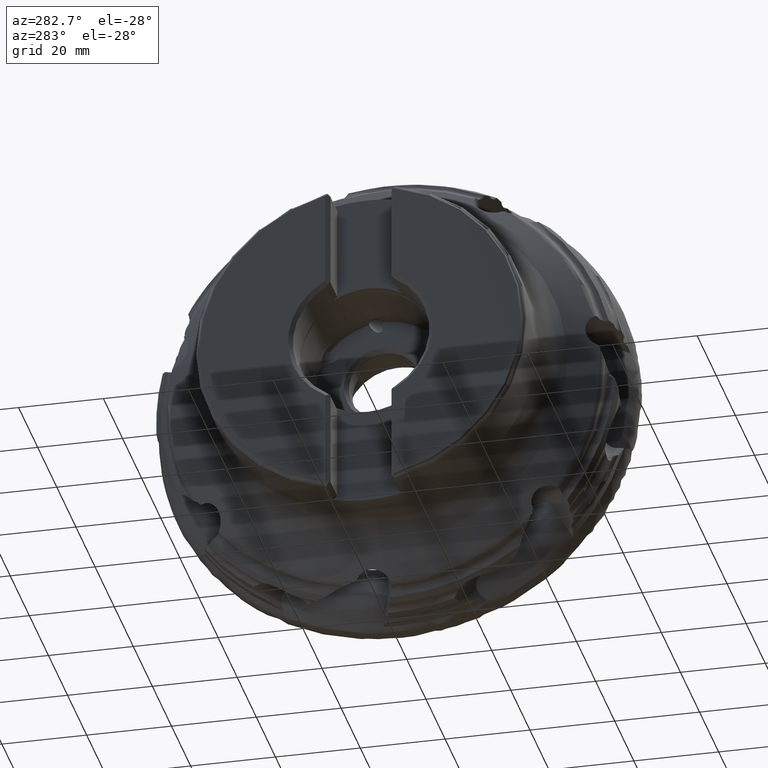
[diagram: clean part render]
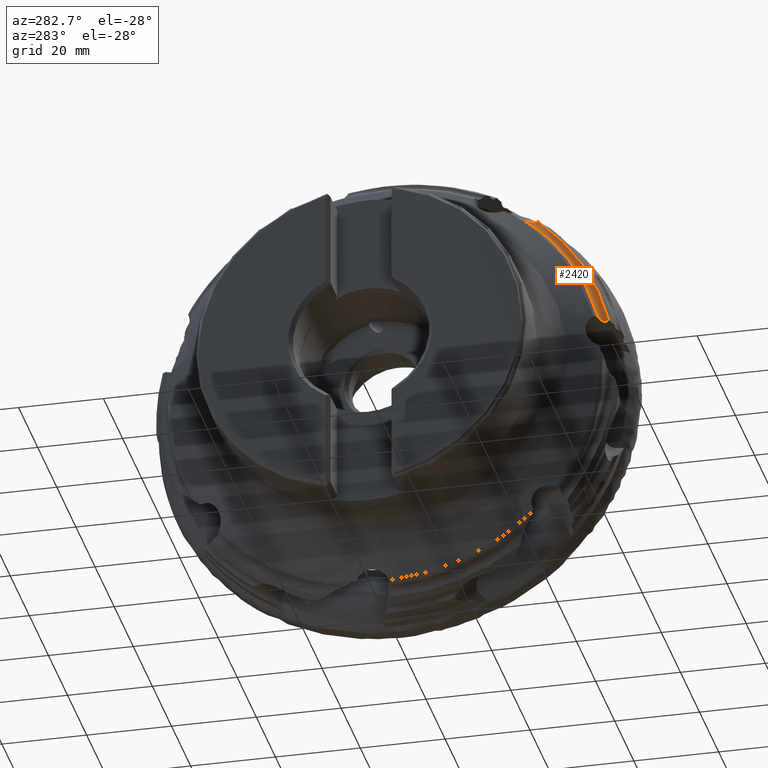
[diagram: same view with one face highlighted and labeled with its STEP entity id]
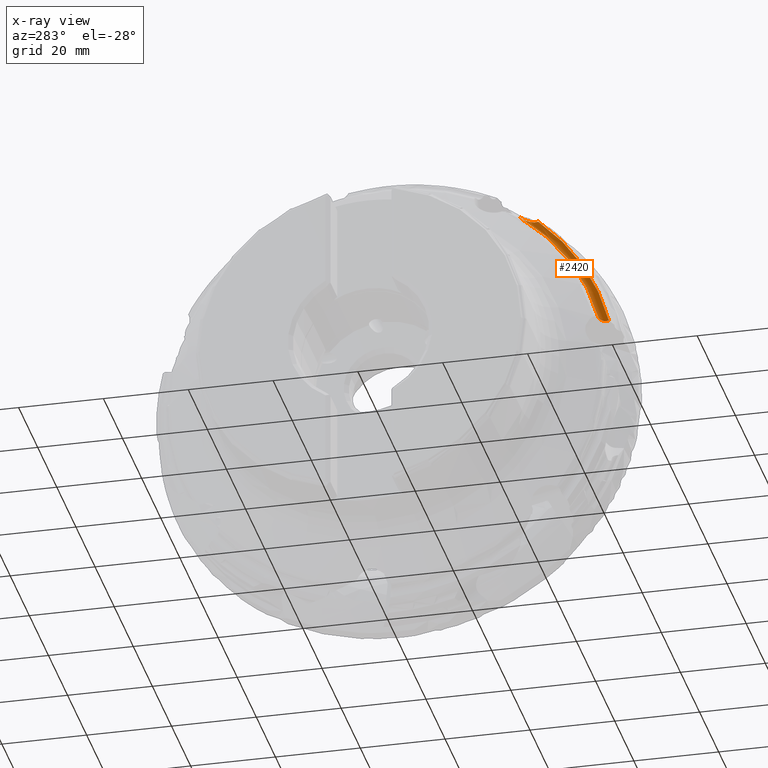
[diagram: x-ray of the same camera — body ghosted, the highlighted face saturated]
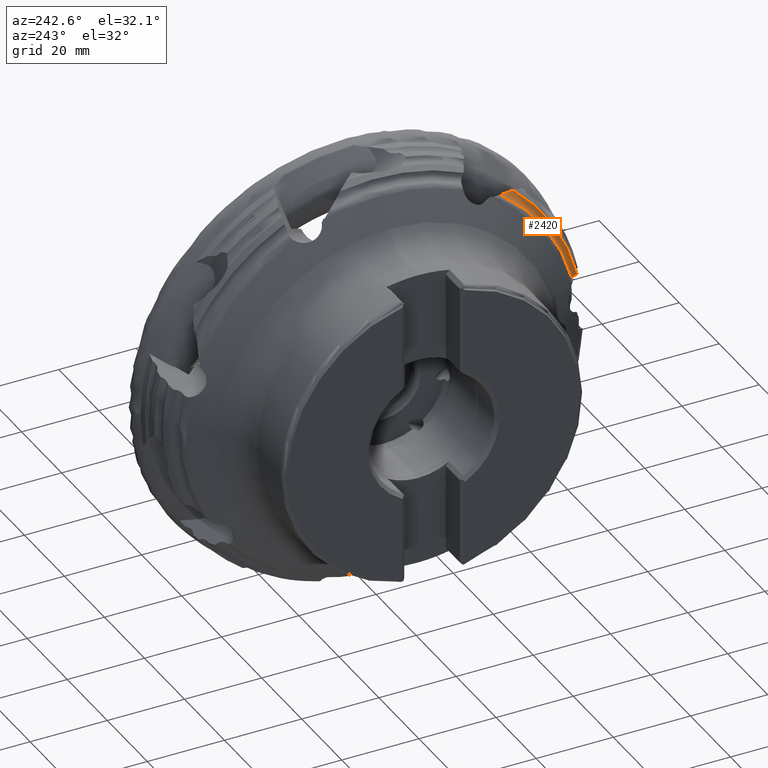
[diagram: same view with one face highlighted and labeled with its STEP entity id]
A machine part, auxiliary view. The second image highlights one B-rep face of the part: STEP entity #2420.
The next image is the same camera in x-ray: the body ghosted, the highlighted face saturated — about 0% of this face is hidden behind the body in this view.
A second angle (auxiliary view) of the same face is appended — the face is thin or edge-on in the first view.
In plain terms, the highlighted toroidal blend (fillet) surface has major radius 53.4155 mm and minor (blend) radius 1.8 mm.
Its self-contained STEP definition (entity closure, byte-faithful):
#364 = VERTEX_POINT ( 'NONE', #10924 ) ;
#1037 = TOROIDAL_SURFACE ( 'NONE', #3967, 53.41549932201380100, 1.800000000000002300 ) ;
#1041 = FACE_OUTER_BOUND ( 'NONE', #2248, .T. ) ;
#1181 = ORIENTED_EDGE ( 'NONE', *, *, #2747, .F. ) ;
#1182 = ORIENTED_EDGE ( 'NONE', *, *, #3507, .T. ) ;
#1183 = ORIENTED_EDGE ( 'NONE', *, *, #10819, .F. ) ;
#1184 = ORIENTED_EDGE ( 'NONE', *, *, #3108, .T. ) ;
#1185 = ORIENTED_EDGE ( 'NONE', *, *, #3556, .F. ) ;
#2248 = EDGE_LOOP ( 'NONE', ( #1181, #1182, #1183, #1184, #1185 ) ) ;
#2420 = ADVANCED_FACE ( 'NONE', ( #1041 ), #1037, .F. ) ;
#2747 = EDGE_CURVE ( 'NONE', #5931, #5939, #11831, .T. ) ;
#2891 = CARTESIAN_POINT ( 'NONE',  ( -20.88016158655104000, -50.30874689945595400, 12.50060917364289800 ) ) ;
#2907 = CARTESIAN_POINT ( 'NONE',  ( -20.97851355101178000, -50.24676452402918200, 12.52559136620455900 ) ) ;
#2916 = CARTESIAN_POINT ( 'NONE',  ( -21.08402026431146200, -50.19344419278844800, 12.54996016211304300 ) ) ;
#2918 = CARTESIAN_POINT ( 'NONE',  ( -21.30043629024733300, -50.10904756471238400, 12.59766847091453500 ) ) ;
#2920 = CARTESIAN_POINT ( 'NONE',  ( -21.41239484807268700, -50.07722737436418500, 12.62127215127712000 ) ) ;
#2921 = CARTESIAN_POINT ( 'NONE',  ( -21.52798172000000000, -50.05629424977093600, 12.64600061110813400 ) ) ;
#3108 = EDGE_CURVE ( 'NONE', #364, #4365, #12462, .T. ) ;
#3507 = EDGE_CURVE ( 'NONE', #5931, #6108, #5115, .T. ) ;
#3556 = EDGE_CURVE ( 'NONE', #5939, #4365, #5128, .T. ) ;
#3967 = AXIS2_PLACEMENT_3D ( 'NONE', #15272, #15217, #15274 ) ;
#4365 = VERTEX_POINT ( 'NONE', #10584 ) ;
#5115 = CIRCLE ( 'NONE', #7647, 51.62900275500000200 ) ;
#5128 = CIRCLE ( 'NONE', #7658, 53.60450000000000200 ) ;
#5931 = VERTEX_POINT ( 'NONE', #14102 ) ;
#5939 = VERTEX_POINT ( 'NONE', #14106 ) ;
#6108 = VERTEX_POINT ( 'NONE', #14231 ) ;
#7647 = AXIS2_PLACEMENT_3D ( 'NONE', #9720, #9721, #9722 ) ;
#7658 = AXIS2_PLACEMENT_3D ( 'NONE', #9817, #9818, #9819 ) ;
#8128 = CARTESIAN_POINT ( 'NONE',  ( -21.52798172000000000, -31.36232776869814400, 41.01168519342435600 ) ) ;
#8129 = CARTESIAN_POINT ( 'NONE',  ( -21.30436510647692600, -31.62938593387144700, 40.84213861031120300 ) ) ;
#8134 = CARTESIAN_POINT ( 'NONE',  ( -21.10244737631777000, -31.92149085441690200, 40.69796035605407500 ) ) ;
#8135 = CARTESIAN_POINT ( 'NONE',  ( -20.73225760600302400, -32.54453750349986100, 40.44893927850574800 ) ) ;
#8136 = CARTESIAN_POINT ( 'NONE',  ( -20.56306294014249400, -32.87880694593318500, 40.34378635552267400 ) ) ;
#8137 = CARTESIAN_POINT ( 'NONE',  ( -20.27305183080684600, -33.57149465210422100, 40.18449471966643200 ) ) ;
#8138 = CARTESIAN_POINT ( 'NONE',  ( -20.15021365983079700, -33.93142829811544200, 40.12866582103378500 ) ) ;
#8139 = CARTESIAN_POINT ( 'NONE',  ( -20.01965424887353600, -34.49754724970691200, 40.10144367888646100 ) ) ;
#8140 = CARTESIAN_POINT ( 'NONE',  ( -19.98600568154648000, -34.68764238272496000, 40.10215960911622100 ) ) ;
#8141 = CARTESIAN_POINT ( 'NONE',  ( -19.94665243022398100, -35.07176416311143900, 40.13130532255193800 ) ) ;
#8142 = CARTESIAN_POINT ( 'NONE',  ( -19.94115447215092700, -35.26435063481776700, 40.15968306674831500 ) ) ;
#8143 = CARTESIAN_POINT ( 'NONE',  ( -19.95799999999998800, -35.45023460815202300, 40.20849768987869100 ) ) ;
#8764 = CARTESIAN_POINT ( 'NONE',  ( -20.73052625281722800, -50.40304855863895000, 12.46260059148724500 ) ) ;
#8766 = CARTESIAN_POINT ( 'NONE',  ( -20.88016158655104000, -50.30874689945595400, 12.50060917364289800 ) ) ;
#8769 = CARTESIAN_POINT ( 'NONE',  ( -20.59429207347944100, -50.51531448861020800, 12.43402387749708600 ) ) ;
#8770 = CARTESIAN_POINT ( 'NONE',  ( -20.34985669796308700, -50.77742461125988900, 12.39660034692926200 ) ) ;
#8771 = CARTESIAN_POINT ( 'NONE',  ( -20.24427149303894400, -50.92557453204798200, 12.38840759427289000 ) ) ;
#8772 = CARTESIAN_POINT ( 'NONE',  ( -20.07830981440902500, -51.24288794292231600, 12.39480456342373300 ) ) ;
#8773 = CARTESIAN_POINT ( 'NONE',  ( -20.01658854247372700, -51.41579150419220000, 12.40971290496883800 ) ) ;
#8774 = CARTESIAN_POINT ( 'NONE',  ( -19.94756390659570800, -51.76325597947096200, 12.46155799741163500 ) ) ;
#8775 = CARTESIAN_POINT ( 'NONE',  ( -19.93917816384779900, -51.94351360100941400, 12.49936436092272300 ) ) ;
#8776 = CARTESIAN_POINT ( 'NONE',  ( -19.95799999999999500, -52.11561158209011800, 12.54613285736741300 ) ) ;
#9624 = B_SPLINE_CURVE_WITH_KNOTS ( 'NONE', 3,
 ( #2891, #2907, #2916, #2918, #2920, #2921 ),
 .UNSPECIFIED., .F., .F.,
 ( 4, 2, 4 ),
 ( 0.002188890485268244200, 0.002543205499611650400, 0.002897520513955057100 ),
 .UNSPECIFIED. ) ;
#9720 = CARTESIAN_POINT ( 'NONE',  ( -21.52798172000000000, 0.0000000000000000000, 0.0000000000000000000 ) ) ;
#9721 = DIRECTION ( 'NONE',  ( 1.000000000000000000, -0.0000000000000000000, -0.0000000000000000000 ) ) ;
#9722 = DIRECTION ( 'NONE',  ( 0.0000000000000000000, 0.0000000000000000000, -1.000000000000000000 ) ) ;
#9817 = CARTESIAN_POINT ( 'NONE',  ( -19.95799999999999500, 0.0000000000000000000, 0.0000000000000000000 ) ) ;
#9818 = DIRECTION ( 'NONE',  ( 1.000000000000000000, -0.0000000000000000000, -0.0000000000000000000 ) ) ;
#9819 = DIRECTION ( 'NONE',  ( 0.0000000000000000000, 0.0000000000000000000, -1.000000000000000000 ) ) ;
#10584 = CARTESIAN_POINT ( 'NONE',  ( -19.95799999999999500, -52.11561158209011800, 12.54613285736741300 ) ) ;
#10819 = EDGE_CURVE ( 'NONE', #364, #6108, #9624, .T. ) ;
#10924 = CARTESIAN_POINT ( 'NONE',  ( -20.88016158655104000, -50.30874689945595400, 12.50060917364289800 ) ) ;
#11831 = B_SPLINE_CURVE_WITH_KNOTS ( 'NONE', 3,
 ( #8128, #8129, #8134, #8135, #8136, #8137, #8138, #8139, #8140, #8141, #8142, #8143 ),
 .UNSPECIFIED., .F., .F.,
 ( 4, 2, 2, 2, 2, 4 ),
 ( 3.424171157602883400E-007, 0.001148929459829438300, 0.002297516502543116400, 0.003446103545256794800, 0.004020397066613644500, 0.004594690587970495400 ),
 .UNSPECIFIED. ) ;
#12462 = B_SPLINE_CURVE_WITH_KNOTS ( 'NONE', 3,
 ( #8766, #8764, #8769, #8770, #8771, #8772, #8773, #8774, #8775, #8776 ),
 .UNSPECIFIED., .F., .F.,
 ( 4, 2, 2, 2, 4 ),
 ( 0.0007276953168960697100, 0.001264743962093147400, 0.001801792607290225000, 0.002338841252487302700, 0.002875889897684380400 ),
 .UNSPECIFIED. ) ;
#14102 = CARTESIAN_POINT ( 'NONE',  ( -21.52798172000000000, -31.36232776869814400, 41.01168519342435600 ) ) ;
#14106 = CARTESIAN_POINT ( 'NONE',  ( -19.95799999999998800, -35.45023460815202300, 40.20849768987869100 ) ) ;
#14231 = CARTESIAN_POINT ( 'NONE',  ( -21.52798172000000000, -50.05629424977093600, 12.64600061110813400 ) ) ;
#15217 = DIRECTION ( 'NONE',  ( 1.000000000000000000, -0.0000000000000000000, -0.0000000000000000000 ) ) ;
#15272 = CARTESIAN_POINT ( 'NONE',  ( -21.74804992771731100, 0.0000000000000000000, 0.0000000000000000000 ) ) ;
#15274 = DIRECTION ( 'NONE',  ( 0.0000000000000000000, 0.0000000000000000000, -1.000000000000000000 ) ) ;